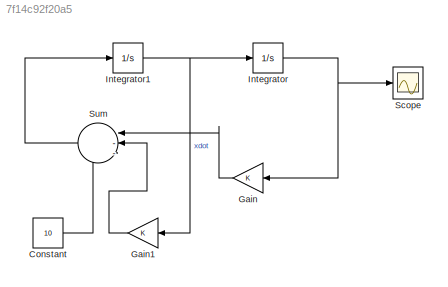
MODEL slx_7f14c92f20a5
KIND model
CONFIG AbsTol = auto
CONFIG EnableMultiTasking = off
CONFIG FixedStep = auto
CONFIG MaxStep = auto
CONFIG MinStep = auto
CONFIG RelTol = 1e-3
CONFIG SampleTimeConstraint = Unconstrained
CONFIG SolverName = VariableStepAuto
CONFIG StartTime = 0.0
CONFIG StopTime = 10
BLOCK [Constant] Constant
  Value = 10
BLOCK [Gain] Gain
  NameLocation = top
BLOCK [Gain] Gain1
  NameLocation = top
BLOCK [Integrator] Integrator
  InitialCondition = 6
BLOCK [Integrator] Integrator1
  InitialCondition = 3
BLOCK [Scope] Scope
  Floating = off
  NumInputPorts = 1
  ScopeSpecificationString = Simulink.scopes.TimeScopeBlockCfg('CurrentConfiguration', extmgr.ConfigurationSet(extmgr.Configuration('Core','General UI',true),extmgr.Configuration('Core','Source UI',true),extmgr.Configuration('Sources','WiredSimulink',true),extmgr.Configuration('Visuals','Time Domain',true,'SerializedDisplays',{struct('MinYLimReal','5.38366','MaxYLimReal','11.5471','YLabelReal','','MinYLimMag','5.38366','MaxYL...<+1357ch>
BLOCK [Sum] Sum
  Inputs = |--+
  NameLocation = top
LINE Constant:1 -> Sum:3
LINE Gain1:1 -> Sum:2
LINE Gain:1 -> Sum:1
NET Integrator1:1 -> Gain1:1, Integrator:1
NET Integrator:1 -> Gain:1, Scope:1
LINE Sum:1 -> Integrator1:1
note: NET lines group one-source signal fan-out (src -> all destinations, sorted); 1:1 wires keep LINE
